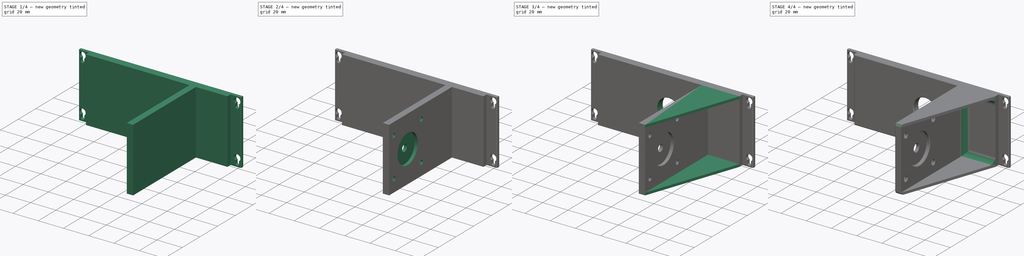
[diagram: build sequence overview — one tinted view per stage of 4, left to right]
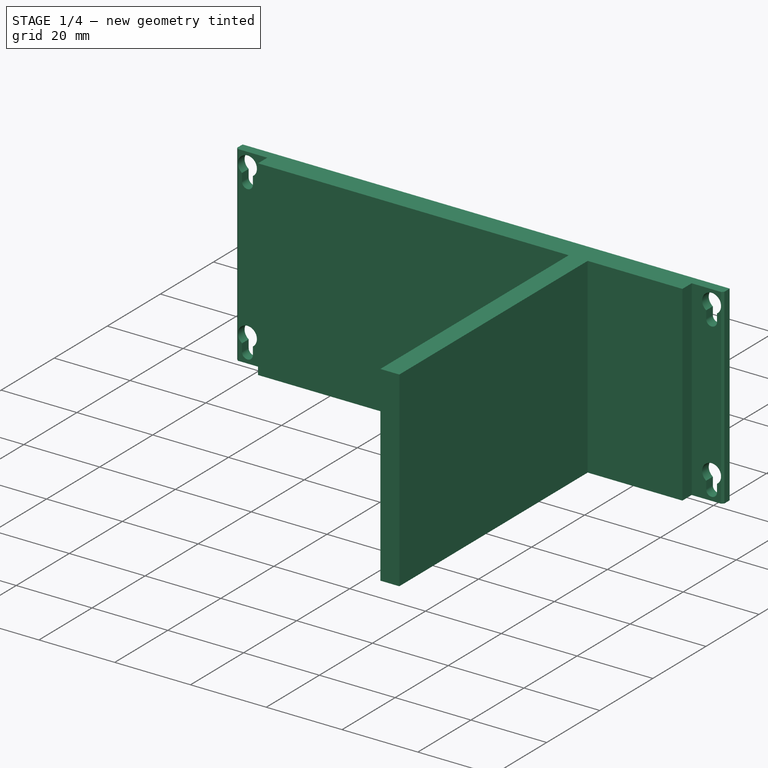
[diagram: stage 1 of 4 — iso view after this stage's code; geometry added in this stage tinted green]
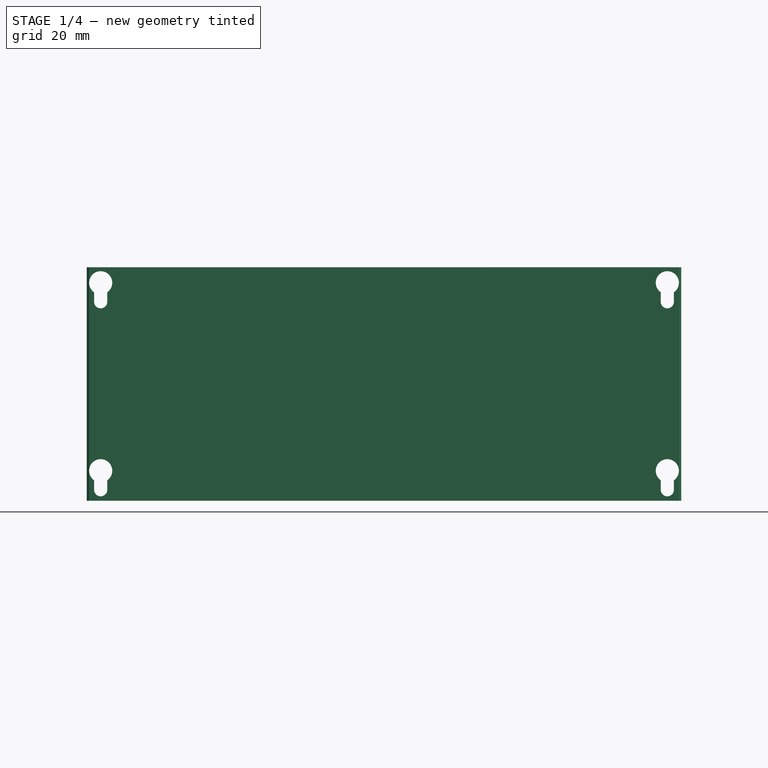
[diagram: stage 1 of 4 — front view after this stage's code; geometry added in this stage tinted green]
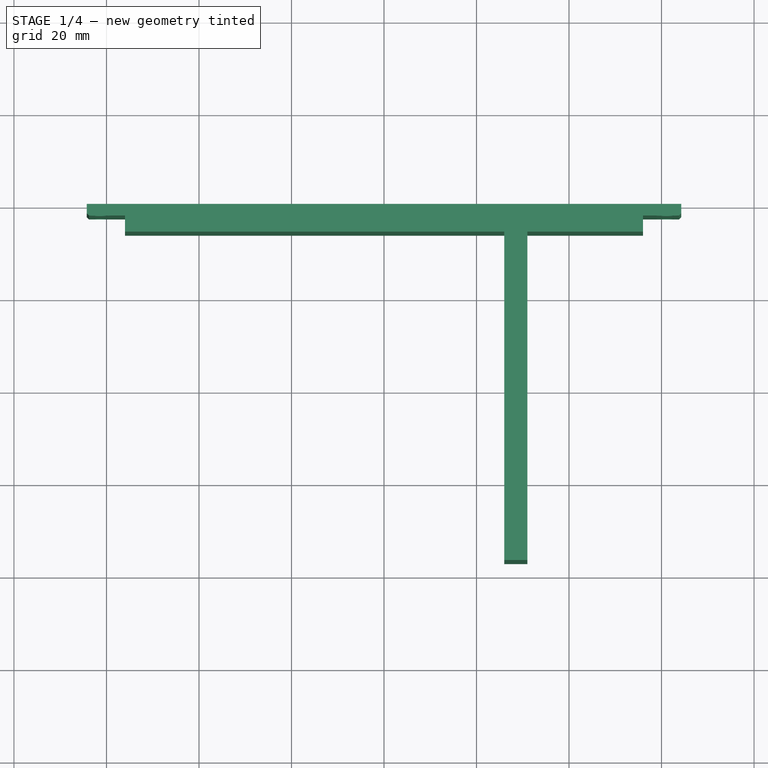
[diagram: stage 1 of 4 — top view after this stage's code; geometry added in this stage tinted green]
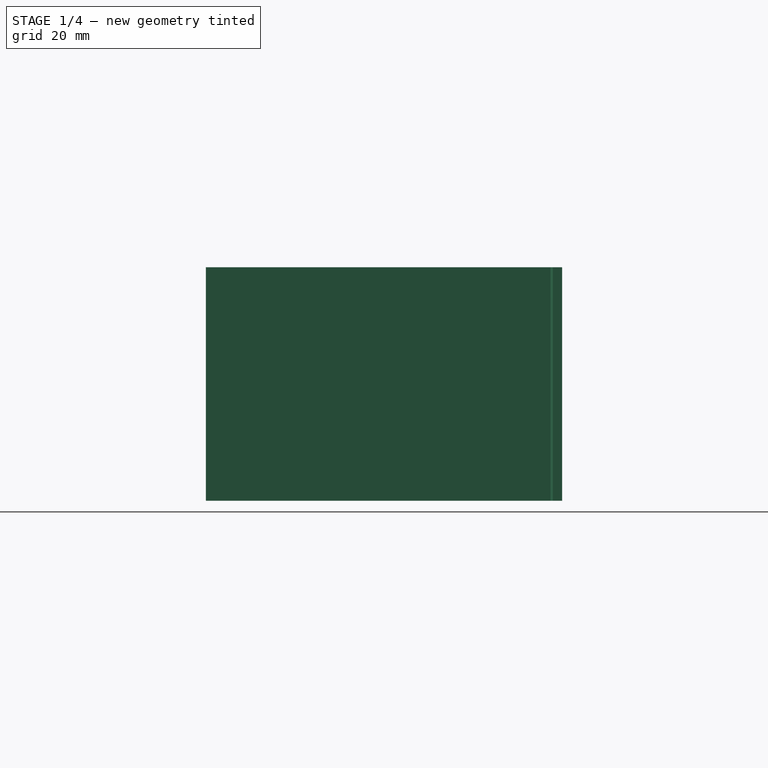
[diagram: stage 1 of 4 — right view after this stage's code; geometry added in this stage tinted green]
FCSTD DOCUMENT  (FreeCAD 1.0R39109 (Git))
Label: base
License: All rights reserved
LicenseURL: https://en.wikipedia.org/wiki/All_rights_reserved
objects: Sketcher::SketchObject×8, PartDesign::Pad×4, PartDesign::Chamfer×3, PartDesign::Pocket×3, PartDesign::Fillet×2, App::VarSet×1, PartDesign::Hole×1, PartDesign::Plane×1, PartDesign::Mirrored×1, PartDesign::Body×1
note: 59 computed .brp shape members not serialized (recipe doc carries the construction recipe); baked Part::Feature solids carry a one-line shape summary decoded from their .brp

FEATURE [App::VarSet] VarSet
  n = 10
FEATURE [Sketcher::SketchObject] Sketch
  ArcFitTolerance = 1e-06
  AttachmentSupport = -> [XZ_Plane]
  FullyConstrained = true
  MakeInternals = false
  MapMode = 5
  Placement = pos=(0,0,0) rot=(1,0,0;1.5708rad)
  expr: Constraints[11] = 5.08 mm * VarSet.n - 0.3 mm
  expr: Constraints[48] = 2.39 + 5.08
  sketch-geometry (24):
    g0: LineSegment StartX=-64.275 StartY=50.5 StartZ=0 EndX=-64.275 EndY=0 EndZ=0
    g1: LineSegment StartX=-64.275 StartY=0 StartZ=0 EndX=64.275 EndY=0 EndZ=0
    g2: LineSegment StartX=64.275 StartY=0 StartZ=0 EndX=64.275 EndY=50.5 EndZ=0
    g3: LineSegment StartX=64.275 StartY=50.5 StartZ=0 EndX=-64.275 EndY=50.5 EndZ=0
    g4: GeomPoint [constr] X=0 Y=25.25 Z=0
    g5: ArcOfCircle CenterX=61.25 CenterY=2.39 CenterZ=0 NormalX=0 NormalY=0 NormalZ=1 AngleXU=0 Radius=1.425 StartAngle=3.14159 EndAngle=6.28319
    g6: ArcOfCircle CenterX=61.25 CenterY=6.49822 CenterZ=0 NormalX=0 NormalY=0 NormalZ=1 AngleXU=0 Radius=2.5 StartAngle=5.31889 EndAngle=10.3891
    g7: Circle [constr] CenterX=61.25 CenterY=2.39 CenterZ=0 NormalX=0 NormalY=0 NormalZ=1 AngleXU=0 Radius=2.5
    g8: LineSegment StartX=59.825 StartY=2.39 StartZ=0 EndX=59.825 EndY=4.44411 EndZ=0
    g9: LineSegment StartX=62.675 StartY=2.39 StartZ=0 EndX=62.675 EndY=4.44411 EndZ=0
    g10: ArcOfCircle CenterX=-61.25 CenterY=2.39 CenterZ=0 NormalX=0 NormalY=0 NormalZ=1 AngleXU=0 Radius=1.425 StartAngle=3.14159 EndAngle=6.28318
    g11: ArcOfCircle CenterX=-61.25 CenterY=6.49822 CenterZ=0 NormalX=0 NormalY=0 NormalZ=1 AngleXU=0 Radius=2.5 StartAngle=5.31889 EndAngle=10.3891
    g12: LineSegment StartX=-59.825 StartY=2.39 StartZ=0 EndX=-59.825 EndY=4.44411 EndZ=0
    g13: LineSegment StartX=-62.675 StartY=2.39 StartZ=0 EndX=-62.675 EndY=4.44411 EndZ=0
    g14: ArcOfCircle CenterX=61.25 CenterY=43.03 CenterZ=0 NormalX=0 NormalY=0 NormalZ=1 AngleXU=0 Radius=1.425 StartAngle=3.14159 EndAngle=6.28319
    g15: ArcOfCircle CenterX=61.25 CenterY=47.1382 CenterZ=0 NormalX=0 NormalY=0 NormalZ=1 AngleXU=0 Radius=2.5 StartAngle=5.31889 EndAngle=10.3891
    g16: Circle [constr] CenterX=61.25 CenterY=43.03 CenterZ=0 NormalX=0 NormalY=0 NormalZ=1 AngleXU=0 Radius=2.5
    g17: LineSegment StartX=59.825 StartY=43.03 StartZ=0 EndX=59.825 EndY=45.0841 EndZ=0
    g18: LineSegment StartX=62.675 StartY=43.03 StartZ=0 EndX=62.675 EndY=45.0841 EndZ=0
    g19: ArcOfCircle CenterX=-61.25 CenterY=43.03 CenterZ=0 NormalX=0 NormalY=0 NormalZ=1 AngleXU=0 Radius=1.425 StartAngle=3.14159 EndAngle=6.28319
    g20: ArcOfCircle CenterX=-61.25 CenterY=47.1382 CenterZ=0 NormalX=0 NormalY=0 NormalZ=1 AngleXU=0 Radius=2.5 StartAngle=5.31889 EndAngle=10.3891
    g21: Circle [constr] CenterX=-61.25 CenterY=43.03 CenterZ=0 NormalX=0 NormalY=0 NormalZ=1 AngleXU=0 Radius=2.5
    g22: LineSegment StartX=-59.825 StartY=43.03 StartZ=0 EndX=-59.825 EndY=45.0841 EndZ=0
    g23: LineSegment StartX=-62.675 StartY=43.03 StartZ=0 EndX=-62.675 EndY=45.0841 EndZ=0
  constraints (64):
    c: Coincident(g0,g1)
    c: Coincident(g1,g2)
    c: Coincident(g2,g3)
    c: Coincident(g3,g0)
    c: Vertical(g0)
    c: Vertical(g2)
    c: Horizontal(g1)
    c: Horizontal(g3)
    c: Symmetric(g2,g0,g4)
    c: PointOnObject(g4,g-2)
    c: PointOnObject(g1,g-1)
    c: DistanceY(g2,g2) = 50.5
    c: DistanceX(g1,g1) = 128.55
    c: Diameter(g5) = 2.85
    c: Distance(g5,g2) = 3.025
    c: Diameter(g6) = 5
    c: Vertical(g5,g6)
    c: Coincident(g7,g5)
    c: Equal(g7,g6)
    c: Vertical(g8)
    c: Vertical(g9)
    c: Coincident(g6,g9)
    c: Coincident(g6,g8)
    c: Tangent(g5,g9) = -1.5708
    c: Tangent(g5,g8) = 1.5708
    c: PointOnObject(g6,g7)
    c: Symmetric(g5,g10,g-2)
    c: Symmetric(g5,g10,g-2)
    c: Equal(g6,g11)
    c: Symmetric(g6,g11,g-2)
    c: Symmetric(g6,g11,g-2)
    c: Symmetric(g8,g12,g-2)
    c: Symmetric(g8,g12,g-2)
    c: Symmetric(g9,g13,g-2)
    c: Symmetric(g9,g13,g-2)
    c: Diameter(g14) = 2.85
    c: Diameter(g15) = 5
    c: Vertical(g14,g15)
    c: Coincident(g16,g14)
    c: Equal(g16,g15)
    c: Vertical(g17)
    c: Vertical(g18)
    c: Coincident(g15,g18)
    c: Coincident(g15,g17)
    c: Tangent(g14,g18) = -1.5708
    c: Tangent(g14,g17) = 1.5708
    c: PointOnObject(g15,g16)
    c: Vertical(g15,g6)
    c: Distance(g14,g3) = 7.47
    c: DistanceY(g5,g14) = 40.64
    c: Symmetric(g14,g19,g-2)
    c: Symmetric(g14,g19,g-2)
    c: Equal(g15,g20)
    c: Symmetric(g15,g20,g-2)
    c: Symmetric(g15,g20,g-2)
    c: Equal(g16,g21)
    c: Symmetric(g16,g21,g-2)
    c: Symmetric(g17,g22,g-2)
    c: Symmetric(g17,g22,g-2)
    c: Symmetric(g18,g23,g-2)
    c: Symmetric(g18,g23,g-2)
    c: Equal(g10,g5)
    c: Equal(g14,g19)
    c: Distance(g5,g1) = 2.39
FEATURE [PartDesign::Pad] Pad
  Direction = (0,-1,2e-16)
  Length = 2.5
  Length2 = 10
  Placement = pos=(0,0,0) rot=(1,0,0;1.5708rad)
  Profile = -> Sketch
  ReferenceAxis = -> Sketch [N_Axis]
  Refine = true
  Suppressed = false
  Type = 0
FEATURE [PartDesign::Chamfer] Chamfer
  Angle = 45
  Base = -> Pad [Edge10,Edge4]
  BaseFeature = -> Pad
  ChamferType = 0
  FlipDirection = false
  Placement = pos=(0,0,0) rot=(1,0,0;1.5708rad)
  Refine = true
  Size = 0.5
  Size2 = 1
  SupportTransform = false
  Suppressed = false
  UseAllEdges = false
FEATURE [Sketcher::SketchObject] Sketch001
  ArcFitTolerance = 1e-06
  AttachmentSupport = -> [XZ_Plane]
  ExternalGeometry = -> [Chamfer]
  FullyConstrained = true
  MakeInternals = false
  MapMode = 5
  Placement = pos=(0,0,0) rot=(1,0,0;1.5708rad)
  sketch-geometry (5):
    g0: LineSegment StartX=-56 StartY=0 StartZ=0 EndX=56 EndY=0 EndZ=0
    g1: LineSegment StartX=56 StartY=0 StartZ=0 EndX=56 EndY=50.5 EndZ=0
    g2: LineSegment StartX=56 StartY=50.5 StartZ=0 EndX=-56 EndY=50.5 EndZ=0
    g3: LineSegment StartX=-56 StartY=50.5 StartZ=0 EndX=-56 EndY=0 EndZ=0
    g4: GeomPoint [constr] X=0 Y=25.25 Z=0
  constraints (13):
    c: Coincident(g0,g1)
    c: Coincident(g1,g2)
    c: Coincident(g2,g3)
    c: Coincident(g3,g0)
    c: Horizontal(g0)
    c: Horizontal(g2)
    c: Vertical(g1)
    c: Vertical(g3)
    c: Symmetric(g2,g0,g4)
    c: Distance(g1,g3) = 112
    c: PointOnObject(g4,g-2)
    c: PointOnObject(g2,g-3)
    c: PointOnObject(g-1,g0)
FEATURE [PartDesign::Pad] Pad001
  BaseFeature = -> Chamfer
  Direction = (0,-1,2e-16)
  Length = 6
  Length2 = 10
  Placement = pos=(0,0,0) rot=(1,0,0;1.5708rad)
  Profile = -> Sketch001
  ReferenceAxis = -> Sketch001 [N_Axis]
  Refine = true
  Suppressed = false
  Type = 0
FEATURE [Sketcher::SketchObject] Sketch002
  ArcFitTolerance = 1e-06
  AttachmentSupport = -> [Pad001]
  ExternalGeometry = -> [Pad001]
  FullyConstrained = true
  MakeInternals = false
  MapMode = 5
  Placement = pos=(0,0,0) rot=(1,0,0;3.14159rad)
  sketch-geometry (9):
    g0: LineSegment StartX=26 StartY=6 StartZ=0 EndX=31 EndY=6 EndZ=0
    g1: LineSegment StartX=31 StartY=6 StartZ=0 EndX=31 EndY=77 EndZ=0
    g2: LineSegment StartX=31 StartY=77 StartZ=0 EndX=26 EndY=77 EndZ=0
    g3: LineSegment StartX=26 StartY=77 StartZ=0 EndX=26 EndY=6 EndZ=0
    g4: LineSegment [constr] StartX=56 StartY=35 StartZ=0 EndX=56 EndY=77 EndZ=0
    g5: LineSegment [constr] StartX=56 StartY=77 StartZ=0 EndX=31 EndY=77 EndZ=0
    g6: LineSegment [constr] StartX=31 StartY=77 StartZ=0 EndX=31 EndY=35 EndZ=0
    g7: LineSegment [constr] StartX=31 StartY=35 StartZ=0 EndX=56 EndY=35 EndZ=0
    g8: GeomPoint [constr] X=43.5 Y=56 Z=0
  constraints (24):
    c: Coincident(g0,g1)
    c: Coincident(g1,g2)
    c: Coincident(g2,g3)
    c: Coincident(g3,g0)
    c: Horizontal(g0)
    c: Horizontal(g2)
    c: Vertical(g1)
    c: Vertical(g3)
    c: PointOnObject(g0,g-3)
    c: DistanceX(g2,g2) = 5
    c: Coincident(g4,g5)
    c: Coincident(g5,g6)
    c: Coincident(g6,g7)
    c: Coincident(g7,g4)
    c: Vertical(g4)
    c: Vertical(g6)
    c: Horizontal(g5)
    c: Horizontal(g7)
    c: Symmetric(g6,g4,g8)
    c: Coincident(g5,g1)
    c: DistanceY(g4,g4) = 42
    c: DistanceX(g5,g5) = 25
    c: PointOnObject(g-3,g4)
    c: Distance(g8,g-3) = 50
FEATURE [PartDesign::Pad] Pad002
  BaseFeature = -> Pad001
  Direction = (0,0,-1)
  Length = 10
  Length2 = 10
  Placement = pos=(0,0,0) rot=(1,0,0;1.5708rad)
  Profile = -> Sketch002
  ReferenceAxis = -> Sketch002 [N_Axis]
  Refine = true
  Suppressed = false
  Type = 3
  UpToFace = -> Pad001 [Face26]
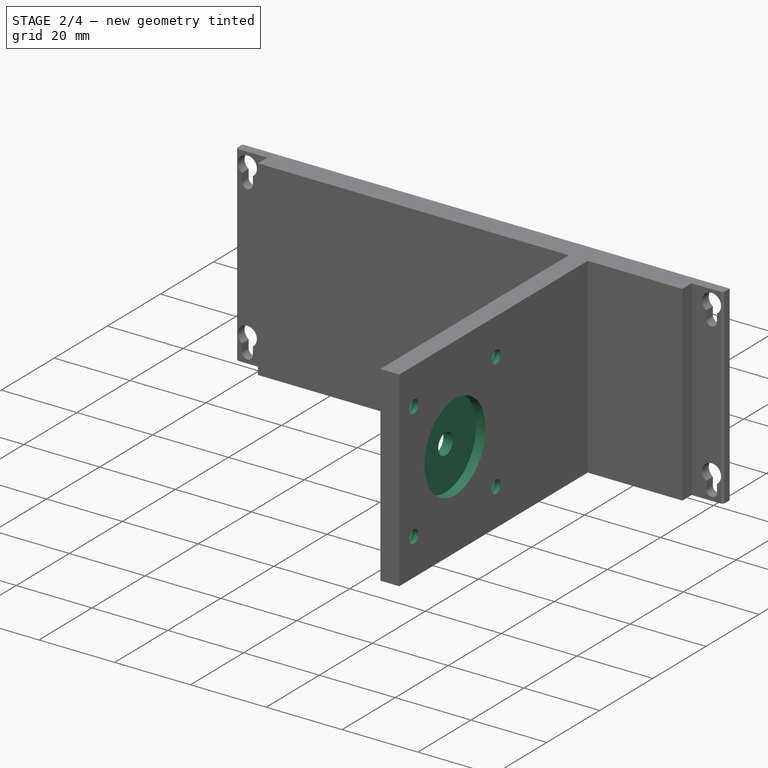
[diagram: stage 2 of 4 — iso view after this stage's code; geometry added in this stage tinted green]
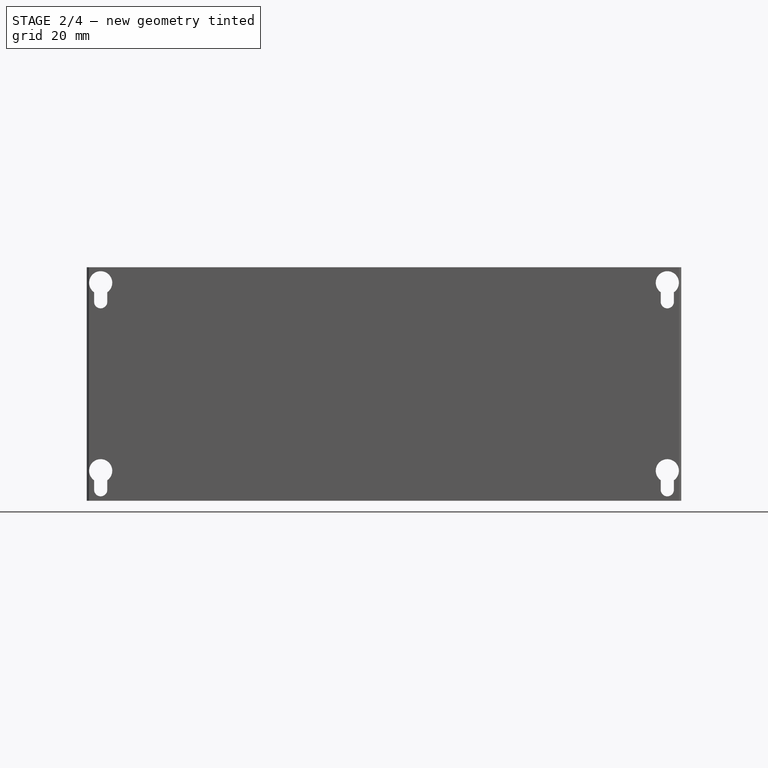
[diagram: stage 2 of 4 — front view after this stage's code; geometry added in this stage tinted green]
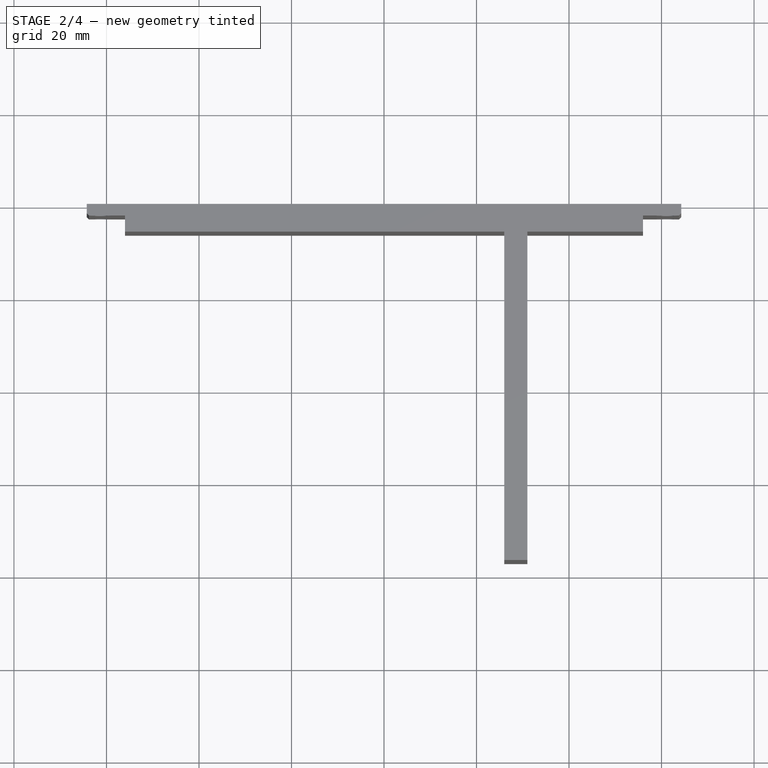
[diagram: stage 2 of 4 — top view after this stage's code; geometry added in this stage tinted green]
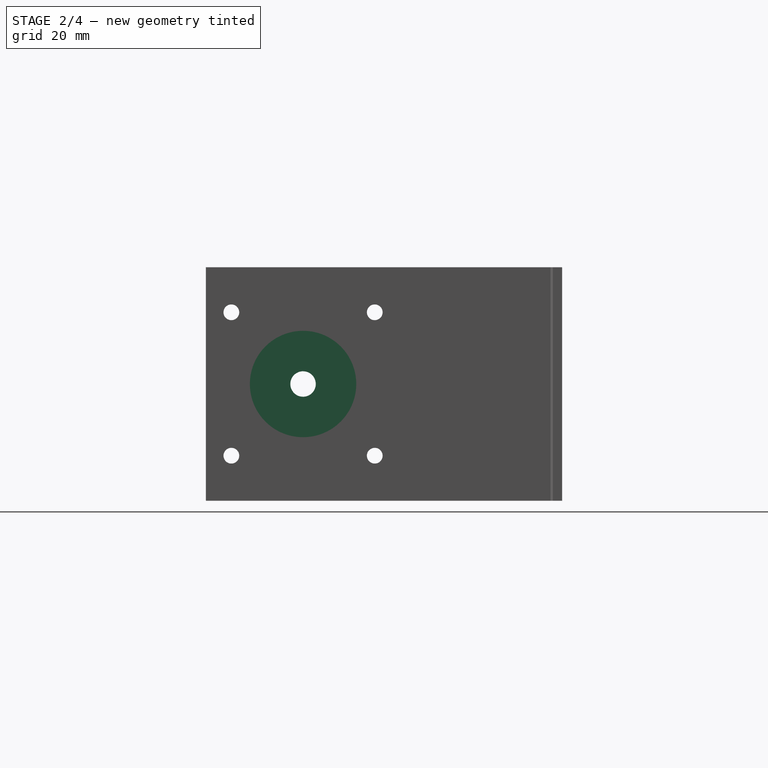
[diagram: stage 2 of 4 — right view after this stage's code; geometry added in this stage tinted green]
FEATURE [Sketcher::SketchObject] Sketch003
  ArcFitTolerance = 1e-06
  AttachmentSupport = -> [Pad002]
  ExternalGeometry = -> [Pad002]
  FullyConstrained = true
  MakeInternals = false
  MapMode = 5
  Placement = pos=(31,0,0) rot=(0.707107,0,0.707107;3.14159rad)
  sketch-geometry (7):
    g0: LineSegment [constr] StartX=4.25 StartY=35 StartZ=0 EndX=46.25 EndY=35 EndZ=0
    g1: LineSegment [constr] StartX=46.25 StartY=35 StartZ=0 EndX=46.25 EndY=77 EndZ=0
    g2: LineSegment [constr] StartX=46.25 StartY=77 StartZ=0 EndX=4.25 EndY=77 EndZ=0
    g3: LineSegment [constr] StartX=4.25 StartY=77 StartZ=0 EndX=4.25 EndY=35 EndZ=0
    g4: GeomPoint [constr] X=25.25 Y=56 Z=0
    g5: LineSegment [constr] StartX=25.25 StartY=77 StartZ=0 EndX=25.25 EndY=56 EndZ=0
    g6: Circle CenterX=25.25 CenterY=56 CenterZ=0 NormalX=0 NormalY=0 NormalZ=1 AngleXU=0 Radius=2.75
  constraints (17):
    c: Coincident(g0,g1)
    c: Coincident(g1,g2)
    c: Coincident(g2,g3)
    c: Coincident(g3,g0)
    c: Horizontal(g0)
    c: Horizontal(g2)
    c: Vertical(g1)
    c: Vertical(g3)
    c: Symmetric(g2,g0,g4)
    c: Symmetric(g-3,g-3,g5)
    c: Coincident(g5,g4)
    c: Equal(g1,g2)
    c: Vertical(g5)
    c: DistanceY(g1,g1) = 42
    c: PointOnObject(g2,g-3)
    c: Coincident(g6,g4)
    c: Diameter(g6) = 5.5
FEATURE [PartDesign::Pocket] Pocket
  BaseFeature = -> Pad002
  Direction = (-1,0,2e-16)
  Length = 5
  Length2 = 5
  Placement = pos=(0,0,0) rot=(1,0,0;1.5708rad)
  Profile = -> Sketch003
  ReferenceAxis = -> Sketch003 [N_Axis]
  Refine = true
  Suppressed = false
  Type = 1
FEATURE [Sketcher::SketchObject] Sketch004
  ArcFitTolerance = 1e-06
  AttachmentSupport = -> [Pocket]
  ExternalGeometry = -> [Pocket]
  FullyConstrained = true
  MakeInternals = false
  MapMode = 5
  Placement = pos=(31,0,0) rot=(0.707107,0,0.707107;3.14159rad)
  sketch-geometry (1):
    g0: Circle CenterX=25.25 CenterY=56 CenterZ=0 NormalX=0 NormalY=0 NormalZ=1 AngleXU=0 Radius=11.5
  constraints (2):
    c: Coincident(g0,g-3)
    c: Diameter(g0) = 23
FEATURE [PartDesign::Pocket] Pocket001
  BaseFeature = -> Pocket
  Direction = (-1,0,2e-16)
  Length = 2.5
  Length2 = 5
  Placement = pos=(0,0,0) rot=(1,0,0;1.5708rad)
  Profile = -> Sketch004
  ReferenceAxis = -> Sketch004 [N_Axis]
  Refine = true
  Suppressed = false
  Type = 0
FEATURE [Sketcher::SketchObject] Sketch005
  ArcFitTolerance = 1e-06
  AttachmentSupport = -> [Pocket001]
  ExternalGeometry = -> [Pocket001]
  FullyConstrained = true
  MakeInternals = false
  MapMode = 5
  Placement = pos=(26,0,0) rot=(0.707107,0,-0.707107;3.14159rad)
  sketch-geometry (9):
    g0: LineSegment [constr] StartX=-40.75 StartY=71.5 StartZ=0 EndX=-40.75 EndY=40.5 EndZ=0
    g1: LineSegment [constr] StartX=-40.75 StartY=40.5 StartZ=0 EndX=-9.75 EndY=40.5 EndZ=0
    g2: LineSegment [constr] StartX=-9.75 StartY=40.5 StartZ=0 EndX=-9.75 EndY=71.5 EndZ=0
    g3: LineSegment [constr] StartX=-9.75 StartY=71.5 StartZ=0 EndX=-40.75 EndY=71.5 EndZ=0
    g4: GeomPoint [constr] X=-25.25 Y=56 Z=0
    g5: Circle CenterX=-9.75 CenterY=71.5 CenterZ=0 NormalX=0 NormalY=0 NormalZ=1 AngleXU=0 Radius=1.75
    g6: Circle CenterX=-9.75 CenterY=40.5 CenterZ=0 NormalX=0 NormalY=0 NormalZ=1 AngleXU=0 Radius=1.75
    g7: Circle CenterX=-40.75 CenterY=40.5 CenterZ=0 NormalX=0 NormalY=0 NormalZ=1 AngleXU=0 Radius=1.75
    g8: Circle CenterX=-40.75 CenterY=71.5 CenterZ=0 NormalX=0 NormalY=0 NormalZ=1 AngleXU=0 Radius=1.75
  constraints (20):
    c: Coincident(g0,g1)
    c: Coincident(g1,g2)
    c: Coincident(g2,g3)
    c: Coincident(g3,g0)
    c: Vertical(g0)
    c: Vertical(g2)
    c: Horizontal(g1)
    c: Horizontal(g3)
    c: Symmetric(g2,g0,g4)
    c: Coincident(g4,g-3)
    c: Equal(g3,g0)
    c: DistanceX(g3,g3) = 31
    c: Coincident(g5,g2)
    c: Coincident(g6,g1)
    c: Coincident(g7,g0)
    c: Coincident(g8,g0)
    c: Equal(g8,g5)
    c: Equal(g5,g7)
    c: Equal(g7,g6)
    c: Diameter(g5) = 3.5
FEATURE [PartDesign::Hole] Hole
  BaseFeature = -> Pocket001
  CustomThreadClearance = 0
  Depth = 25
  DepthType = 0
  Diameter = 3.4
  DrillForDepth = false
  DrillPoint = 1
  DrillPointAngle = 118
  HoleCutCountersinkAngle = 90
  HoleCutCustomValues = false
  HoleCutDepth = 2.5
  HoleCutDiameter = 6.3
  HoleCutType = 3
  ModelThread = false
  Placement = pos=(0,0,0) rot=(1,0,0;1.5708rad)
  Profile = -> Sketch005
  Refine = true
  Suppressed = false
  Tapered = false
  TaperedAngle = 90
  ThreadClass = 0
  ThreadDepth = 25
  ThreadDepthType = 0
  ThreadDirection = 0
  ThreadFit = 0
  ThreadSize = 9
  ThreadType = 1
  Threaded = false
  UseCustomThreadClearance = false
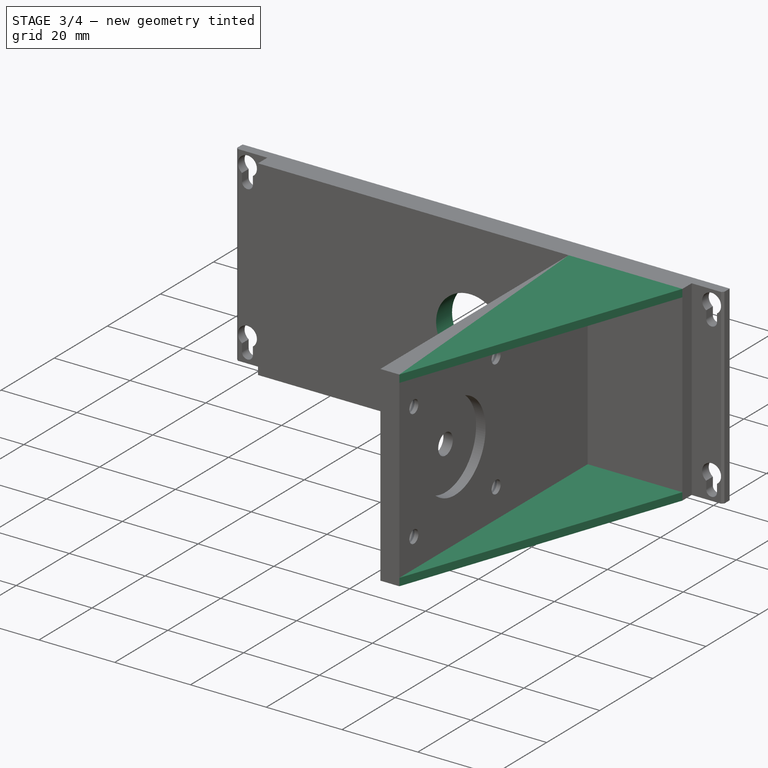
[diagram: stage 3 of 4 — iso view after this stage's code; geometry added in this stage tinted green]
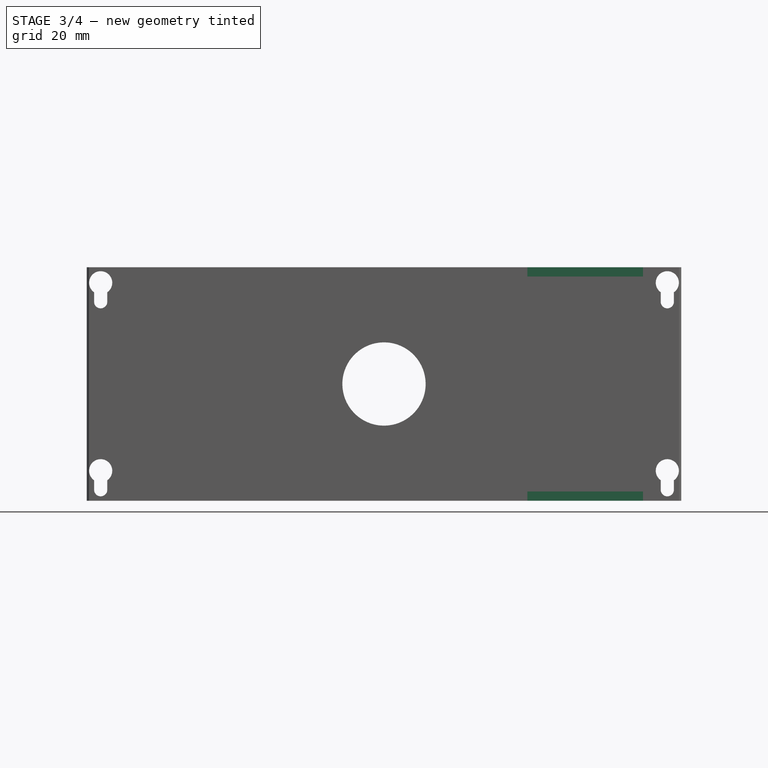
[diagram: stage 3 of 4 — front view after this stage's code; geometry added in this stage tinted green]
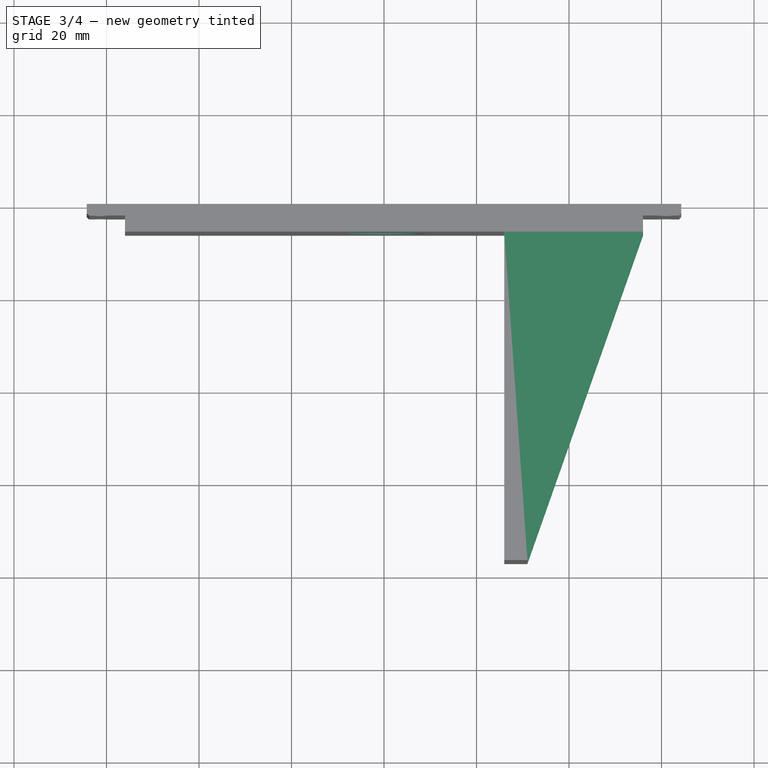
[diagram: stage 3 of 4 — top view after this stage's code; geometry added in this stage tinted green]
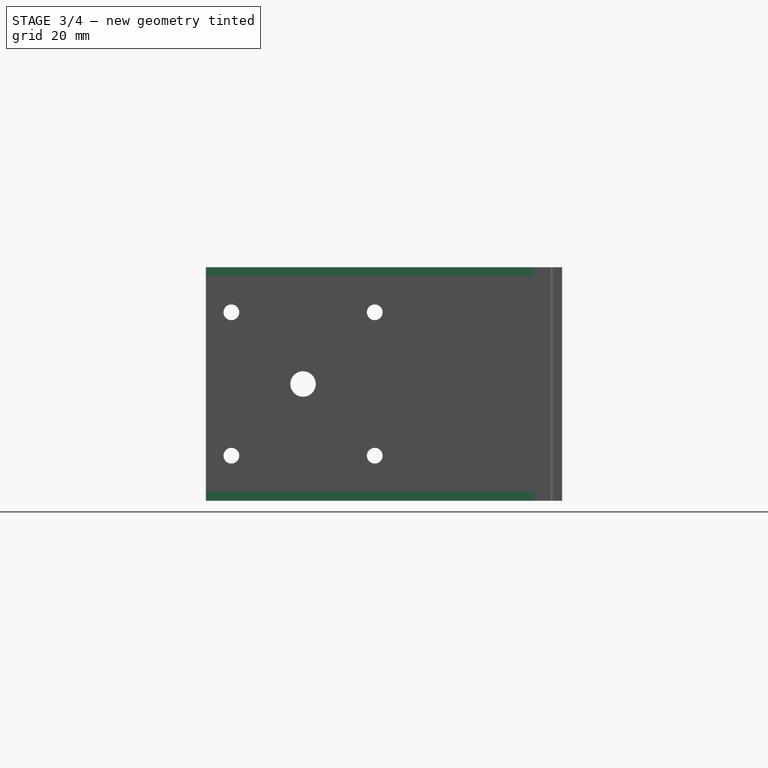
[diagram: stage 3 of 4 — right view after this stage's code; geometry added in this stage tinted green]
FEATURE [Sketcher::SketchObject] Sketch006
  ArcFitTolerance = 1e-06
  AttachmentSupport = -> [Hole]
  ExternalGeometry = -> [Hole]
  FullyConstrained = true
  MakeInternals = false
  MapMode = 5
  Placement = pos=(0,0,4.2e-15) rot=(1,0,0;3.14159rad)
  sketch-geometry (3):
    g0: LineSegment StartX=56 StartY=6 StartZ=0 EndX=31 EndY=6 EndZ=0
    g1: LineSegment StartX=31 StartY=6 StartZ=0 EndX=31 EndY=77 EndZ=0
    g2: LineSegment StartX=31 StartY=77 StartZ=0 EndX=56 EndY=6 EndZ=0
  constraints (6):
    c: Coincident(g-4,g0)
    c: Coincident(g0,g-4)
    c: Coincident(g0,g1)
    c: Coincident(g1,g-3)
    c: Coincident(g1,g2)
    c: Coincident(g2,g0)
FEATURE [PartDesign::Pad] Pad003
  BaseFeature = -> Hole
  Direction = (0,0,-1)
  Length = 2
  Length2 = 10
  Placement = pos=(0,0,0) rot=(1,0,0;1.5708rad)
  Profile = -> Sketch006
  ReferenceAxis = -> Sketch006 [N_Axis]
  Refine = true
  Reversed = true
  Suppressed = false
  Type = 0
FEATURE [PartDesign::Plane] DatumPlane
  AttachmentOffset = pos=(0,0,-25.25) rot=(0,0,1;0rad)
  AttachmentSupport = -> [Pad003]
  Length = 151.452
  MapMode = 5
  Placement = pos=(0,0,25.25) rot=(1,0,0;3.14159rad)
  ResizeMode = 0
  Width = 124.902
FEATURE [PartDesign::Mirrored] Mirrored
  BaseFeature = -> Pad003
  MirrorPlane = -> DatumPlane
  Originals = -> [Pad003]
  Placement = pos=(0,0,0) rot=(1,0,0;1.5708rad)
  Refine = true
  Suppressed = false
  TransformMode = 0
FEATURE [Sketcher::SketchObject] Sketch007
  ArcFitTolerance = 1e-06
  AttachmentSupport = -> [Mirrored]
  ExternalGeometry = -> [Mirrored]
  FullyConstrained = true
  MakeInternals = false
  MapMode = 5
  Placement = pos=(0,0,0) rot=(-1,0,0;1.5708rad)
  sketch-geometry (2):
    g0: LineSegment [constr] StartX=0 StartY=-50.5 StartZ=0 EndX=0 EndY=0 EndZ=0
    g1: Circle CenterX=0 CenterY=-25.25 CenterZ=0 NormalX=0 NormalY=0 NormalZ=1 AngleXU=0 Radius=9
  constraints (4):
    c: Symmetric(g-3,g-3,g0)
    c: Coincident(g0,g-1)
    c: Diameter(g1) = 18
    c: Symmetric(g0,g0,g1)
FEATURE [PartDesign::Pocket] Pocket002
  BaseFeature = -> Mirrored
  Direction = (0,-1,-2e-16)
  Length = 5
  Length2 = 5
  Placement = pos=(0,0,0) rot=(1,0,0;1.5708rad)
  Profile = -> Sketch007
  ReferenceAxis = -> Sketch007 [N_Axis]
  Refine = true
  Suppressed = false
  Type = 1
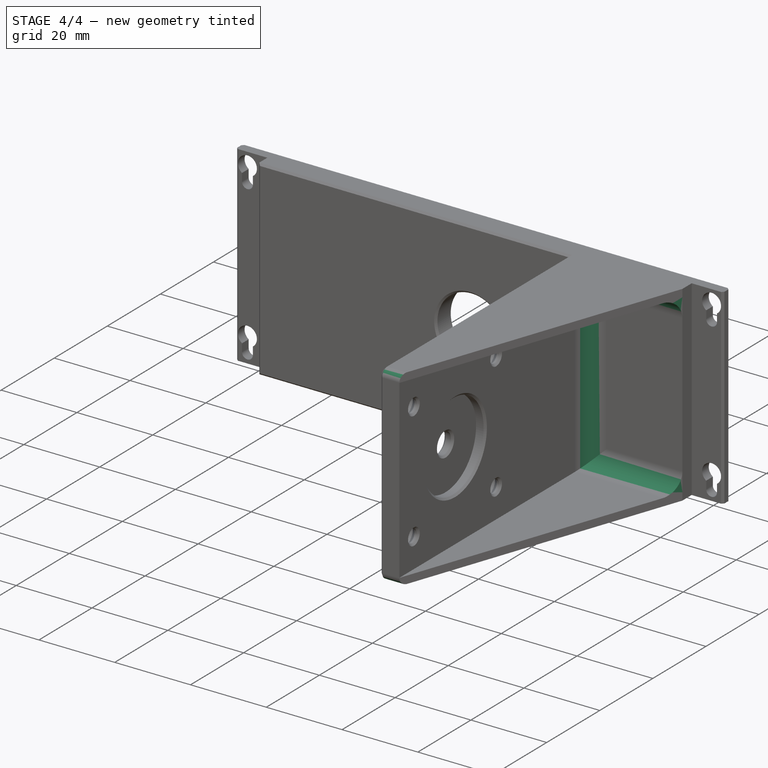
[diagram: stage 4 of 4 — iso view after this stage's code; geometry added in this stage tinted green]
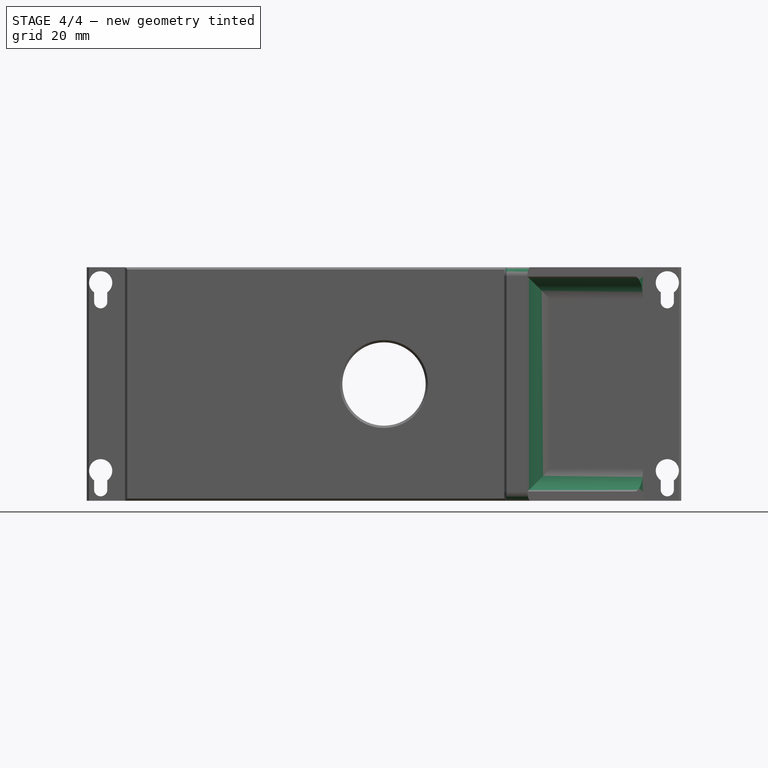
[diagram: stage 4 of 4 — front view after this stage's code; geometry added in this stage tinted green]
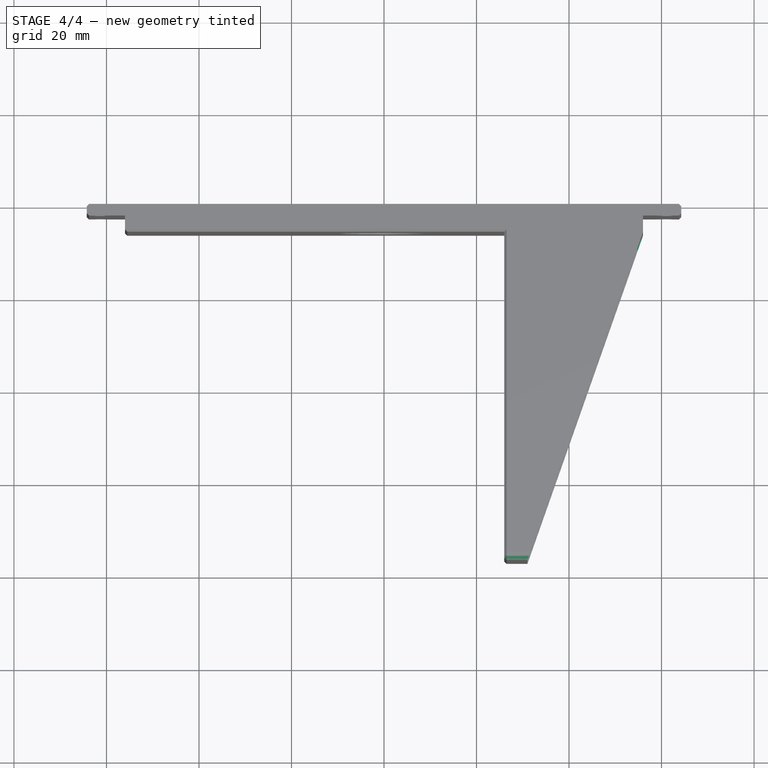
[diagram: stage 4 of 4 — top view after this stage's code; geometry added in this stage tinted green]
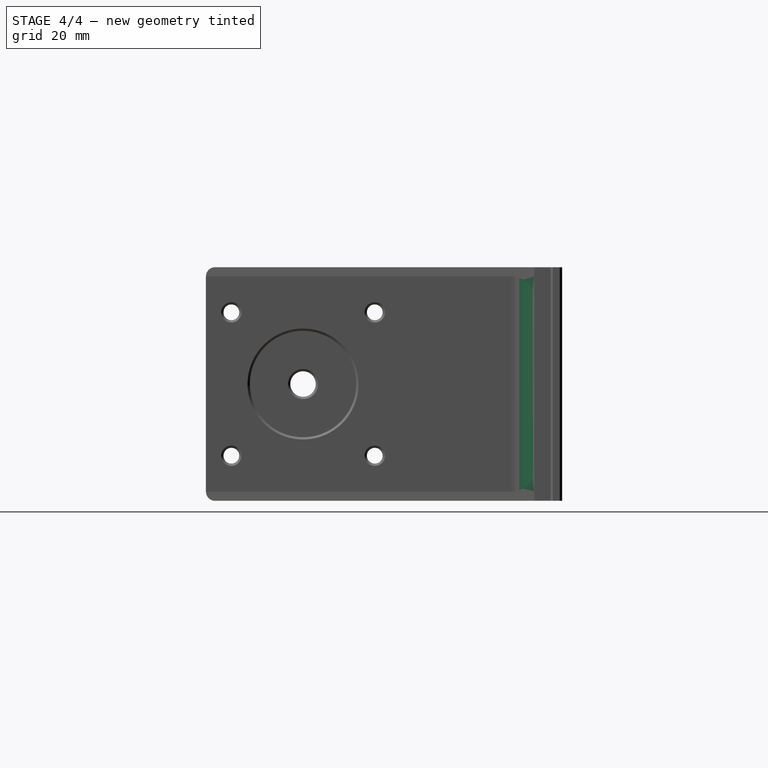
[diagram: stage 4 of 4 — right view after this stage's code; geometry added in this stage tinted green]
FEATURE [PartDesign::Chamfer] Chamfer001
  Angle = 45
  Base = -> Pocket002 [Edge19,Edge3,Edge73,Edge33,Edge71,Edge68,Edge69,Edge67,Edge70,Edge108,Edge116,Edge111,Edge110,Edge107,Edge109,Edge72]
  BaseFeature = -> Pocket002
  ChamferType = 0
  FlipDirection = false
  Placement = pos=(0,0,0) rot=(1,0,0;1.5708rad)
  Refine = true
  Size = 0.5
  Size2 = 1
  SupportTransform = false
  Suppressed = false
  UseAllEdges = false
FEATURE [PartDesign::Fillet] Fillet
  Base = -> Chamfer001 [Edge18,Edge35]
  BaseFeature = -> Chamfer001
  Placement = pos=(0,0,0) rot=(1,0,0;1.5708rad)
  Radius = 2
  Refine = true
  SupportTransform = false
  Suppressed = false
  UseAllEdges = false
FEATURE [PartDesign::Fillet] Fillet001
  Base = -> Fillet [Edge112,Edge109,Edge111]
  BaseFeature = -> Fillet
  Placement = pos=(0,0,0) rot=(1,0,0;1.5708rad)
  Radius = 5
  Refine = true
  SupportTransform = false
  Suppressed = false
  UseAllEdges = false
FEATURE [PartDesign::Chamfer] Chamfer002
  Angle = 45
  Base = -> Fillet001 [Edge21,Edge59,Edge20]
  BaseFeature = -> Fillet001
  ChamferType = 0
  FlipDirection = false
  Placement = pos=(0,0,0) rot=(1,0,0;1.5708rad)
  Refine = true
  Size = 0.5
  Size2 = 1
  SupportTransform = false
  Suppressed = false
  UseAllEdges = false
FEATURE [PartDesign::Body] Body
  AllowCompound = false
  Group = -> [Sketch,Pad,Chamfer,Sketch001,Pad001,Sketch002,Pad002,Sketch003,Pocket,Sketch004,Pocket001,Sketch005,Hole,Sketch006,Pad003,DatumPlane,Mirrored,Sketch007,Pocket002,Chamfer001,Fillet,Fillet001,Chamfer002]
  Origin = -> Origin
  Tip = -> Chamfer002
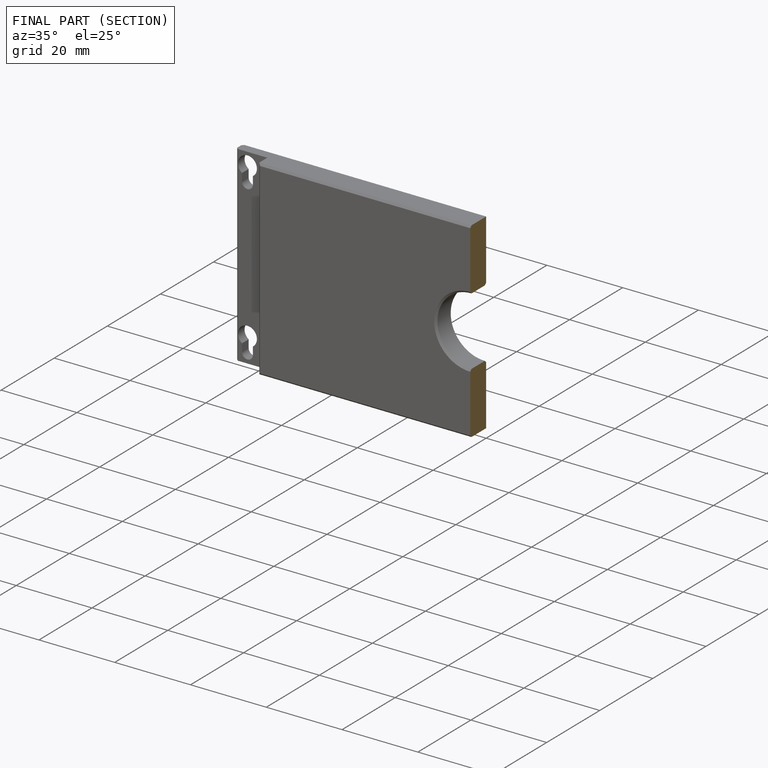
[diagram: finished part — half-section view (interior)]
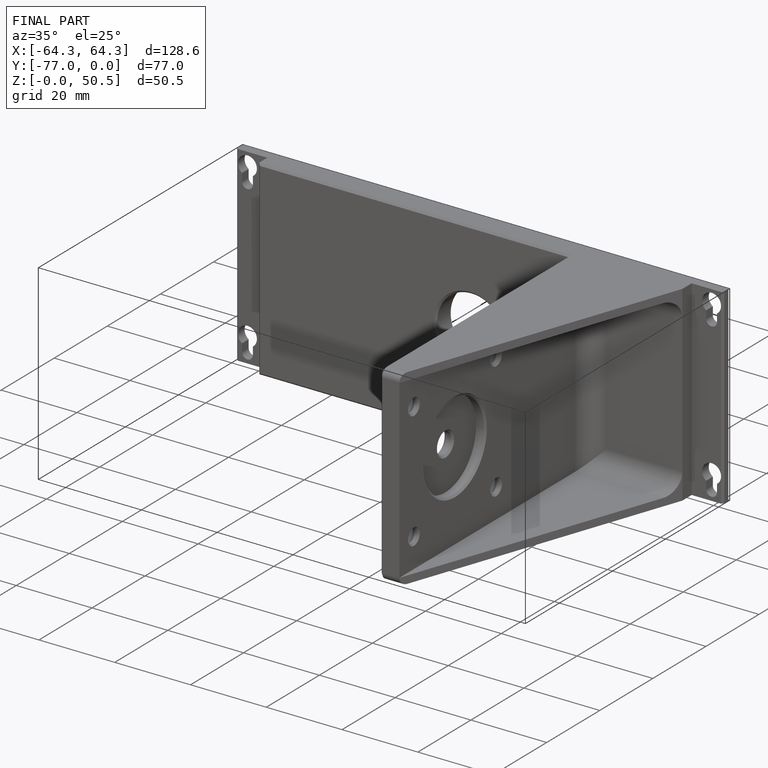
[diagram: finished part — iso view with bounding-box wireframe]
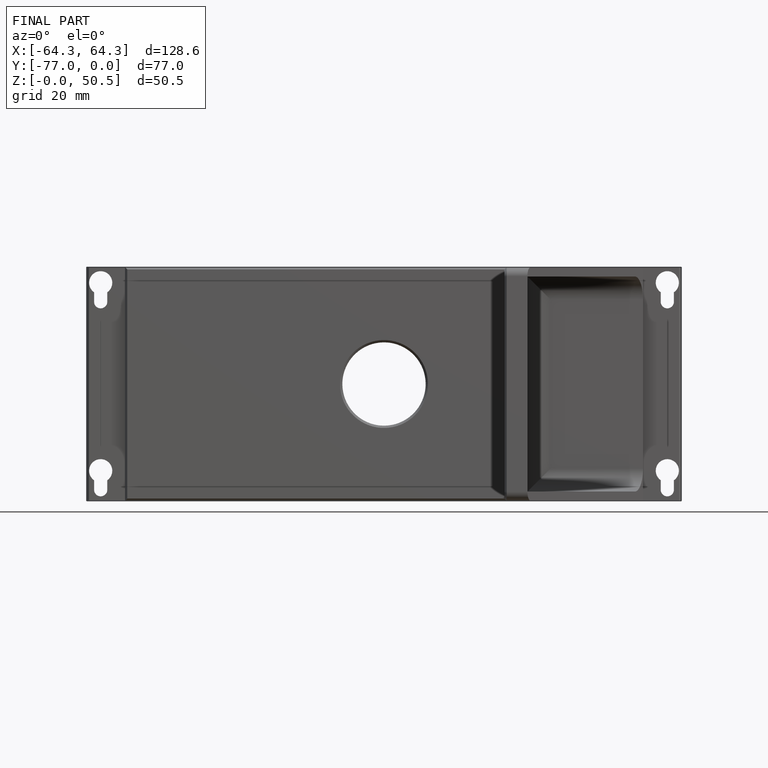
[diagram: finished part — front view with bounding-box wireframe]
